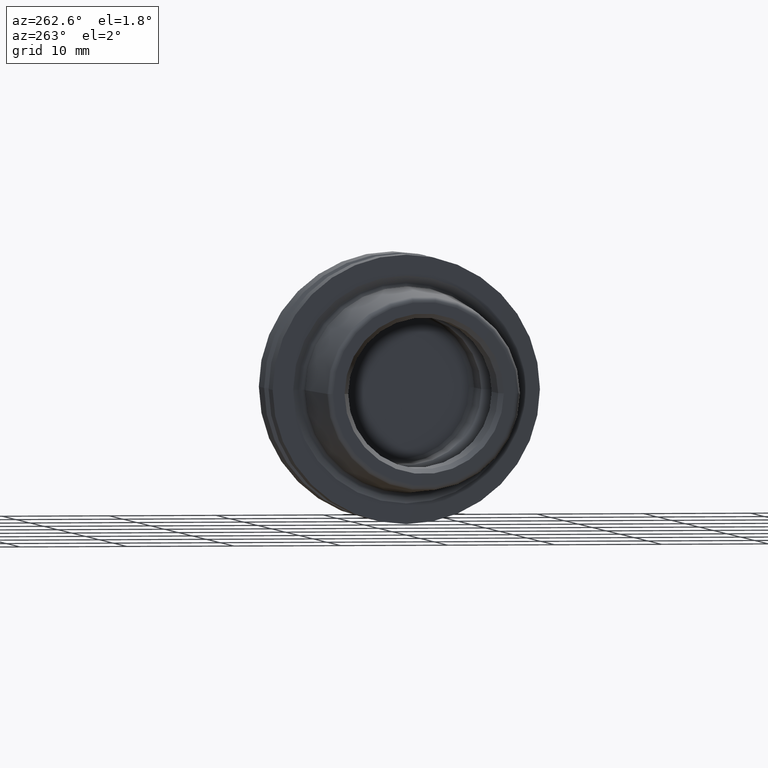
[diagram: clean part render]
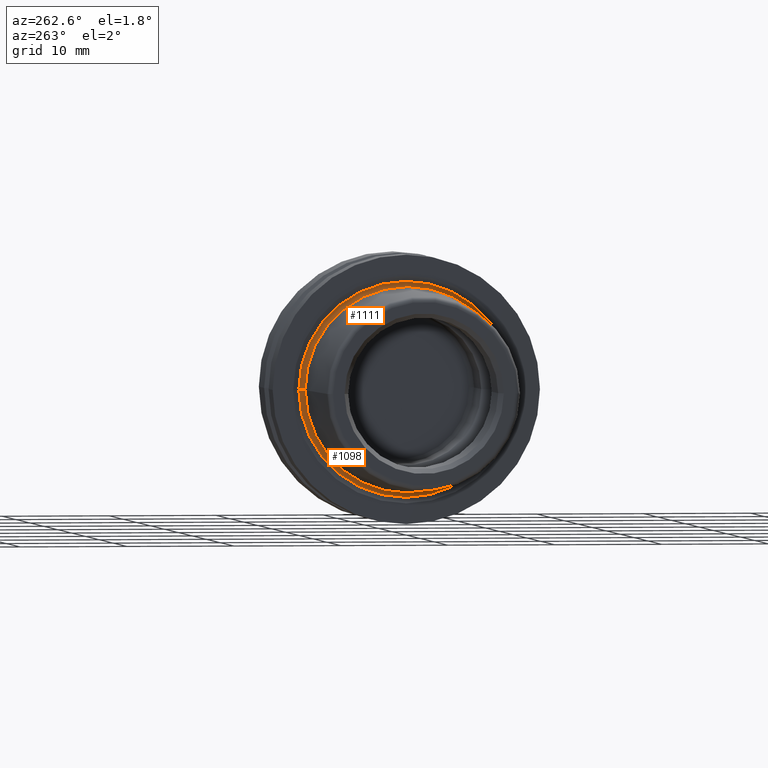
[diagram: same view with one multi-face feature highlighted, each face labeled with its STEP entity id]
A machine part, auxiliary view. The highlighted faces form ONE feature: a constant-radius fillet chain: 2 tangent blend faces with common blend radius 0.4 mm. The faces share edges in the B-rep.
Their STEP definitions:
[1] entity #1111 (Torus):
#248=CARTESIAN_POINT('',(-1.541771632753E-1,0.E0,0.E0));
#249=DIRECTION('',(-1.E0,0.E0,0.E0));
#250=DIRECTION('',(0.E0,-1.E0,0.E0));
#251=AXIS2_PLACEMENT_3D('',#248,#249,#250);
#266=CARTESIAN_POINT('',(-1.541771632753E-1,9.877538461538E0,0.E0));
#267=DIRECTION('',(0.E0,0.E0,-1.E0));
#268=DIRECTION('',(9.304175679820E-1,3.665012267243E-1,0.E0));
#269=AXIS2_PLACEMENT_3D('',#266,#267,#268);
#271=CARTESIAN_POINT('',(-1.541771632753E-1,-9.877538461538E0,0.E0));
#272=DIRECTION('',(0.E0,0.E0,1.E0));
#273=DIRECTION('',(9.304175679820E-1,-3.665012267243E-1,0.E0));
#274=AXIS2_PLACEMENT_3D('',#271,#272,#273);
#281=CARTESIAN_POINT('',(2.179898639175E-1,0.E0,0.E0));
#282=DIRECTION('',(-1.E0,0.E0,0.E0));
#283=DIRECTION('',(0.E0,-1.E0,0.E0));
#284=AXIS2_PLACEMENT_3D('',#281,#282,#283);
#560=CARTESIAN_POINT('',(2.179898639175E-1,-1.002413895223E1,0.E0));
#561=CARTESIAN_POINT('',(-1.541771632753E-1,-9.477538461538E0,0.E0));
#562=VERTEX_POINT('',#560);
#563=VERTEX_POINT('',#561);
#568=CARTESIAN_POINT('',(2.179898639175E-1,1.002413895223E1,0.E0));
#569=CARTESIAN_POINT('',(-1.541771632753E-1,9.477538461538E0,0.E0));
#570=VERTEX_POINT('',#568);
#571=VERTEX_POINT('',#569);
#1099=CARTESIAN_POINT('',(-1.541771632753E-1,0.E0,0.E0));
#1100=DIRECTION('',(-1.E0,0.E0,0.E0));
#1101=DIRECTION('',(0.E0,1.E0,0.E0));
#1102=AXIS2_PLACEMENT_3D('',#1099,#1100,#1101);
#1103=TOROIDAL_SURFACE('',#1102,9.877538461538E0,4.E-1);
#1104=ORIENTED_EDGE('',*,*,#1092,.T.);
#1105=ORIENTED_EDGE('',*,*,#1066,.T.);
#1106=ORIENTED_EDGE('',*,*,#1089,.F.);
#1108=ORIENTED_EDGE('',*,*,#1107,.F.);
#1109=EDGE_LOOP('',(#1104,#1105,#1106,#1108));
#1110=FACE_OUTER_BOUND('',#1109,.F.);
#1111=ADVANCED_FACE('',(#1110),#1103,.F.);
#252=CIRCLE('',#251,9.477538461538E0);
#270=CIRCLE('',#269,4.E-1);
#275=CIRCLE('',#274,4.E-1);
#285=CIRCLE('',#284,1.002413895223E1);
#1066=EDGE_CURVE('',#563,#571,#252,.T.);
#1089=EDGE_CURVE('',#570,#571,#270,.T.);
#1092=EDGE_CURVE('',#562,#563,#275,.T.);
#1107=EDGE_CURVE('',#562,#570,#285,.T.);
[2] entity #1098 (Torus):
#261=CARTESIAN_POINT('',(-1.541771632753E-1,0.E0,0.E0));
#262=DIRECTION('',(-1.E0,0.E0,0.E0));
#263=DIRECTION('',(0.E0,1.E0,0.E0));
#264=AXIS2_PLACEMENT_3D('',#261,#262,#263);
#266=CARTESIAN_POINT('',(-1.541771632753E-1,9.877538461538E0,0.E0));
#267=DIRECTION('',(0.E0,0.E0,-1.E0));
#268=DIRECTION('',(9.304175679820E-1,3.665012267243E-1,0.E0));
#269=AXIS2_PLACEMENT_3D('',#266,#267,#268);
#271=CARTESIAN_POINT('',(-1.541771632753E-1,-9.877538461538E0,0.E0));
#272=DIRECTION('',(0.E0,0.E0,1.E0));
#273=DIRECTION('',(9.304175679820E-1,-3.665012267243E-1,0.E0));
#274=AXIS2_PLACEMENT_3D('',#271,#272,#273);
#276=CARTESIAN_POINT('',(2.179898639175E-1,0.E0,0.E0));
#277=DIRECTION('',(-1.E0,0.E0,0.E0));
#278=DIRECTION('',(0.E0,1.E0,0.E0));
#279=AXIS2_PLACEMENT_3D('',#276,#277,#278);
#560=CARTESIAN_POINT('',(2.179898639175E-1,-1.002413895223E1,0.E0));
#561=CARTESIAN_POINT('',(-1.541771632753E-1,-9.477538461538E0,0.E0));
#562=VERTEX_POINT('',#560);
#563=VERTEX_POINT('',#561);
#568=CARTESIAN_POINT('',(2.179898639175E-1,1.002413895223E1,0.E0));
#569=CARTESIAN_POINT('',(-1.541771632753E-1,9.477538461538E0,0.E0));
#570=VERTEX_POINT('',#568);
#571=VERTEX_POINT('',#569);
#1084=CARTESIAN_POINT('',(-1.541771632753E-1,0.E0,0.E0));
#1085=DIRECTION('',(-1.E0,0.E0,0.E0));
#1086=DIRECTION('',(0.E0,-1.E0,0.E0));
#1087=AXIS2_PLACEMENT_3D('',#1084,#1085,#1086);
#1088=TOROIDAL_SURFACE('',#1087,9.877538461538E0,4.E-1);
#1090=ORIENTED_EDGE('',*,*,#1089,.T.);
#1091=ORIENTED_EDGE('',*,*,#1079,.T.);
#1093=ORIENTED_EDGE('',*,*,#1092,.F.);
#1095=ORIENTED_EDGE('',*,*,#1094,.F.);
#1096=EDGE_LOOP('',(#1090,#1091,#1093,#1095));
#1097=FACE_OUTER_BOUND('',#1096,.F.);
#1098=ADVANCED_FACE('',(#1097),#1088,.F.);
#265=CIRCLE('',#264,9.477538461538E0);
#270=CIRCLE('',#269,4.E-1);
#275=CIRCLE('',#274,4.E-1);
#280=CIRCLE('',#279,1.002413895223E1);
#1079=EDGE_CURVE('',#571,#563,#265,.T.);
#1089=EDGE_CURVE('',#570,#571,#270,.T.);
#1092=EDGE_CURVE('',#562,#563,#275,.T.);
#1094=EDGE_CURVE('',#570,#562,#280,.T.);